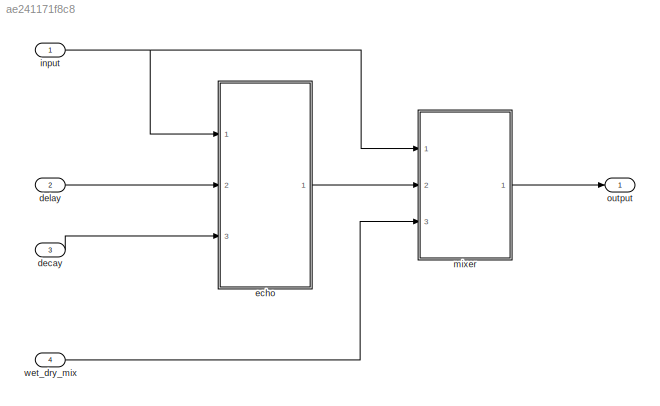
MODEL slx_ae241171f8c8
KIND model
CONFIG AbsTol = auto
CONFIG EnableMultiTasking = off
CONFIG FixedStep = auto
CONFIG MaxStep = auto
CONFIG MinStep = auto
CONFIG RelTol = 1e-3
CONFIG SampleTimeConstraint = Unconstrained
CONFIG Solver = VariableStepAuto
CONFIG SolverName = VariableStepAuto
CONFIG StartTime = 0.0
CONFIG StopTime = 10.0
BLOCK [Inport] decay
  IconDisplay = Port number
  Port = 3
BLOCK [Inport] delay
  IconDisplay = Port number
  Port = 2
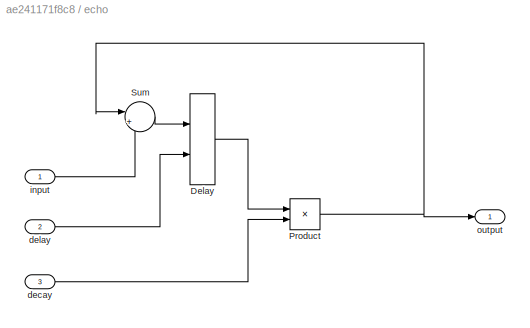
BLOCK [SubSystem] echo
  Ports = [3, 1]
  RequestExecContextInheritance = off
BLOCK [Delay] echo/Delay
  DelayLengthSource = Input port
  DelayLengthUpperLimit = Fs
  DiagnosticForDelayLength = Error
  InputPortMap = u0,p1
  Ports = [2, 1]
  UseCircularBuffer = on
BLOCK [Product] echo/Product
  InputSameDT = off
  OutDataTypeStr = Inherit: Inherit via internal rule
  Ports = [2, 1]
  RndMeth = Floor
  SaturateOnIntegerOverflow = off
BLOCK [Sum] echo/Sum
  IconShape = round
  InputSameDT = off
  Inputs = |++
  OutDataTypeStr = Inherit: Inherit via internal rule
  Ports = [2, 1]
  SaturateOnIntegerOverflow = off
BLOCK [Inport] echo/decay
  IconDisplay = Port number
  Port = 3
BLOCK [Inport] echo/delay
  IconDisplay = Port number
  Port = 2
BLOCK [Inport] echo/input
  IconDisplay = Port number
BLOCK [Outport] echo/output
  IconDisplay = Port number
BLOCK [Inport] input
  IconDisplay = Port number
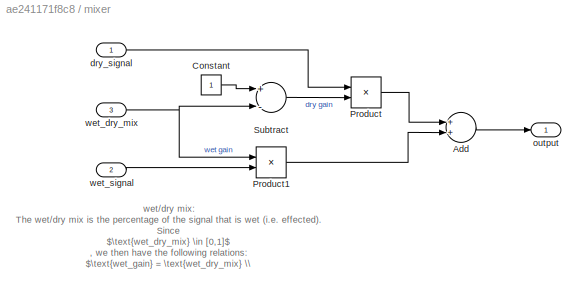
BLOCK [SubSystem] mixer
  Ports = [3, 1]
  RequestExecContextInheritance = off
BLOCK [Sum] mixer/Add
  InputSameDT = off
  OutDataTypeStr = Inherit: Inherit via internal rule
  Ports = [2, 1]
  SaturateOnIntegerOverflow = off
BLOCK [Constant] mixer/Constant
  SampleTime = -1
BLOCK [Product] mixer/Product
  InputSameDT = off
  OutDataTypeStr = Inherit: Inherit via internal rule
  Ports = [2, 1]
  RndMeth = Floor
  SaturateOnIntegerOverflow = off
BLOCK [Product] mixer/Product1
  InputSameDT = off
  OutDataTypeStr = Inherit: Inherit via internal rule
  Ports = [2, 1]
  RndMeth = Floor
  SaturateOnIntegerOverflow = off
BLOCK [Sum] mixer/Subtract
  InputSameDT = off
  Inputs = +-
  OutDataTypeStr = Inherit: Inherit via internal rule
  Ports = [2, 1]
  SaturateOnIntegerOverflow = off
BLOCK [Inport] mixer/dry_signal
  IconDisplay = Port number
BLOCK [Outport] mixer/output
  IconDisplay = Port number
BLOCK [Inport] mixer/wet_dry_mix
  IconDisplay = Port number
  Port = 3
BLOCK [Inport] mixer/wet_signal
  IconDisplay = Port number
  Port = 2
BLOCK [Outport] output
  IconDisplay = Port number
BLOCK [Inport] wet_dry_mix
  IconDisplay = Port number
  Port = 4
ANNOTATION mixer: wet/dry mix: The wet/dry mix is the percentage of the signal that is wet (i.e. effected). Since $\text{wet_dry_mix} \in [0,1]$ , we then have the following relations: $\text{wet_gain} = \text{wet_dry_mix} \\ \text{dry_gain} = 1 - \text{wet_dry_mix}$
LINE decay:1 -> echo:3
LINE delay:1 -> echo:2
LINE echo/Delay:1 -> echo/Product:1
NET echo/Product:1 -> echo/Sum:1, echo/output:1
LINE echo/Sum:1 -> echo/Delay:1
LINE echo/decay:1 -> echo/Product:2
LINE echo/delay:1 -> echo/Delay:2
LINE echo/input:1 -> echo/Sum:2
LINE echo:1 -> mixer:2
NET input:1 -> echo:1, mixer:1
LINE mixer/Add:1 -> mixer/output:1
LINE mixer/Constant:1 -> mixer/Subtract:1
LINE mixer/Product1:1 -> mixer/Add:2
LINE mixer/Product:1 -> mixer/Add:1
LINE mixer/Subtract:1 -> mixer/Product:2
LINE mixer/dry_signal:1 -> mixer/Product:1
NET mixer/wet_dry_mix:1 -> mixer/Product1:1, mixer/Subtract:2
LINE mixer/wet_signal:1 -> mixer/Product1:2
LINE mixer:1 -> output:1
LINE wet_dry_mix:1 -> mixer:3
note: NET lines group one-source signal fan-out (src -> all destinations, sorted); 1:1 wires keep LINE
